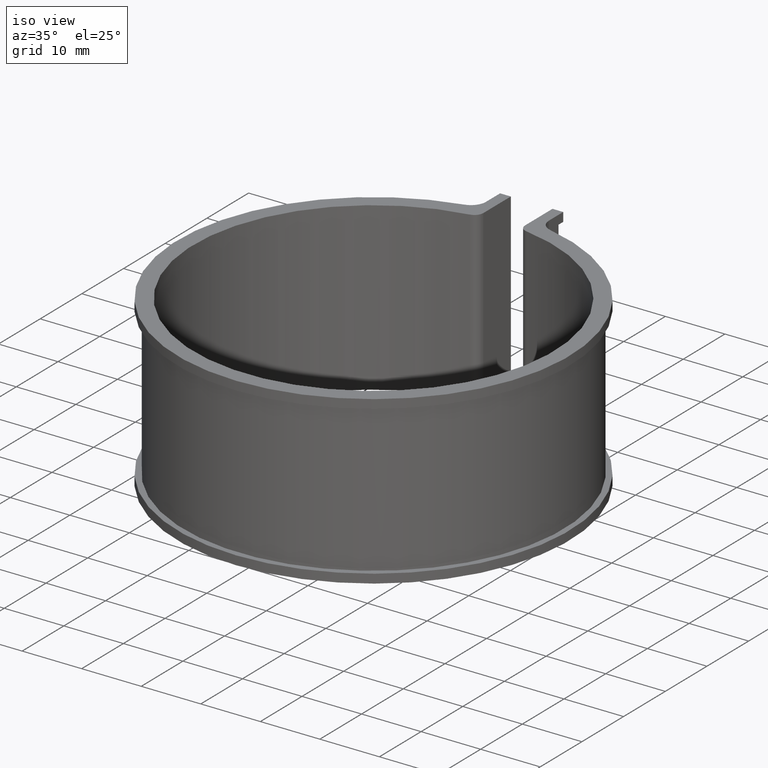
[diagram: clean part render]
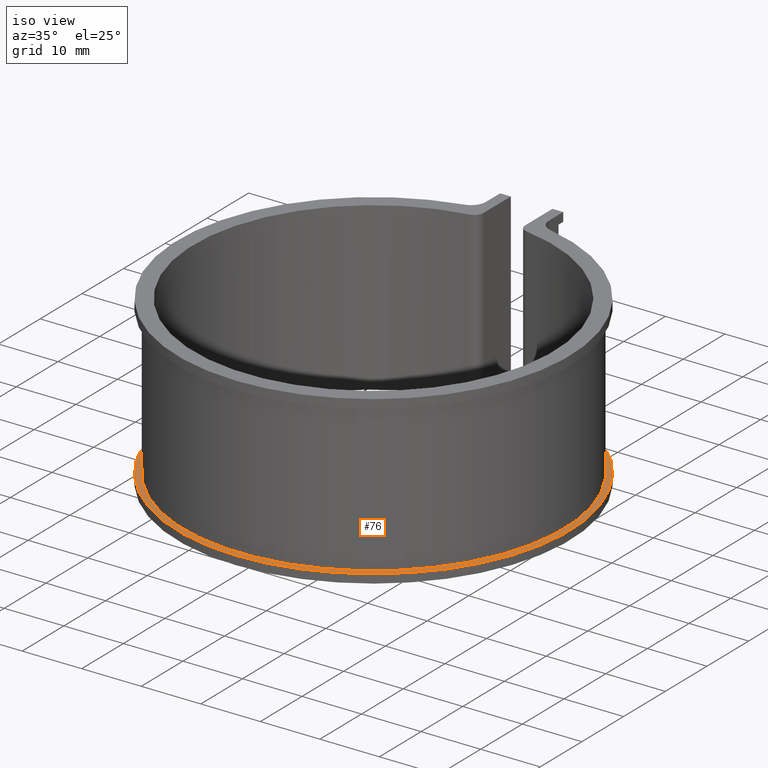
[diagram: same view with one face highlighted and labeled with its STEP entity id]
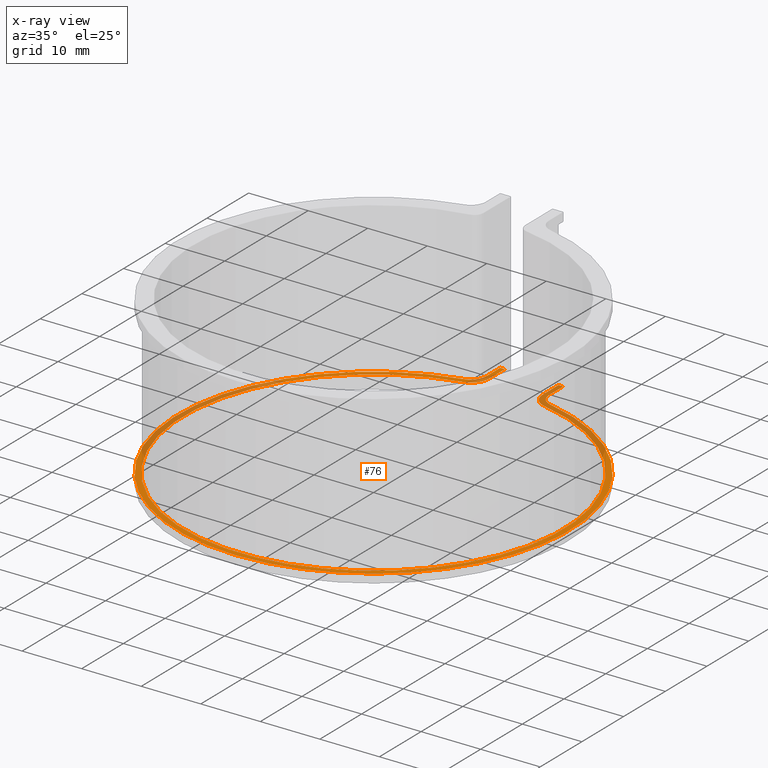
[diagram: x-ray of the same camera — body ghosted, the highlighted face saturated]
A machine part, iso view. The second image highlights one B-rep face of the part: STEP entity #76.
The next image is the same camera in x-ray: the body ghosted, the highlighted face saturated — about 29% of this face is hidden behind the body in this view.
In plain terms, the highlighted planar face has unit normal (0, 0, 1).
Its self-contained STEP definition (entity closure, byte-faithful):
#76 = ADVANCED_FACE( '', ( #104 ), #105, .T. );
#104 = FACE_OUTER_BOUND( '', #156, .T. );
#105 = PLANE( '', #157 );
#156 = EDGE_LOOP( '', ( #213, #214, #215, #216, #217, #218, #219, #220, #221, #222, #223, #224 ) );
#157 = AXIS2_PLACEMENT_3D( '', #225, #226, #227 );
#213 = ORIENTED_EDGE( '', *, *, #432, .F. );
#214 = ORIENTED_EDGE( '', *, *, #433, .T. );
#215 = ORIENTED_EDGE( '', *, *, #434, .F. );
#216 = ORIENTED_EDGE( '', *, *, #435, .T. );
#217 = ORIENTED_EDGE( '', *, *, #436, .F. );
#218 = ORIENTED_EDGE( '', *, *, #437, .T. );
#219 = ORIENTED_EDGE( '', *, *, #438, .T. );
#220 = ORIENTED_EDGE( '', *, *, #439, .T. );
#221 = ORIENTED_EDGE( '', *, *, #440, .T. );
#222 = ORIENTED_EDGE( '', *, *, #441, .T. );
#223 = ORIENTED_EDGE( '', *, *, #442, .T. );
#224 = ORIENTED_EDGE( '', *, *, #443, .T. );
#225 = CARTESIAN_POINT( '', ( 0.000000000000000, 0.000000000000000, -25.0000000000000 ) );
#226 = DIRECTION( '', ( 0.000000000000000, 0.000000000000000, 1.00000000000000 ) );
#227 = DIRECTION( '', ( 0.000000000000000, 1.00000000000000, 0.000000000000000 ) );
#432 = EDGE_CURVE( '', #508, #509, #510, .T. );
#433 = EDGE_CURVE( '', #508, #511, #512, .T. );
#434 = EDGE_CURVE( '', #513, #511, #514, .T. );
#435 = EDGE_CURVE( '', #513, #515, #516, .T. );
#436 = EDGE_CURVE( '', #517, #515, #518, .T. );
#437 = EDGE_CURVE( '', #517, #519, #520, .T. );
#438 = EDGE_CURVE( '', #519, #521, #522, .T. );
#439 = EDGE_CURVE( '', #521, #523, #524, .F. );
#440 = EDGE_CURVE( '', #523, #525, #526, .T. );
#441 = EDGE_CURVE( '', #525, #527, #528, .F. );
#442 = EDGE_CURVE( '', #527, #529, #530, .T. );
#443 = EDGE_CURVE( '', #529, #509, #531, .T. );
#508 = VERTEX_POINT( '', #632 );
#509 = VERTEX_POINT( '', #633 );
#510 = LINE( '', #634, #635 );
#511 = VERTEX_POINT( '', #636 );
#512 = CIRCLE( '', #637, 3.00000000000000 );
#513 = VERTEX_POINT( '', #638 );
#514 = CIRCLE( '', #639, 31.9500000000000 );
#515 = VERTEX_POINT( '', #640 );
#516 = CIRCLE( '', #641, 3.00000000000000 );
#517 = VERTEX_POINT( '', #642 );
#518 = LINE( '', #643, #644 );
#519 = VERTEX_POINT( '', #645 );
#520 = LINE( '', #646, #647 );
#521 = VERTEX_POINT( '', #648 );
#522 = LINE( '', #649, #650 );
#523 = VERTEX_POINT( '', #651 );
#524 = CIRCLE( '', #652, 2.50000000000000 );
#525 = VERTEX_POINT( '', #653 );
#526 = CIRCLE( '', #654, 32.9000000000000 );
#527 = VERTEX_POINT( '', #655 );
#528 = CIRCLE( '', #656, 2.50000000000000 );
#529 = VERTEX_POINT( '', #657 );
#530 = LINE( '', #658, #659 );
#531 = LINE( '', #660, #661 );
#632 = CARTESIAN_POINT( '', ( 4.50000000000000, 34.1357949958691, -25.0000000000000 ) );
#633 = CARTESIAN_POINT( '', ( 4.49999999999998, 37.9315111874219, -25.0000000000000 ) );
#634 = CARTESIAN_POINT( '', ( 4.50000000000000, 31.6315111874220, -25.0000000000000 ) );
#635 = VECTOR( '', #792, 1000.00000000000 );
#636 = CARTESIAN_POINT( '', ( 6.85622317596567, 31.2056838374254, -25.0000000000000 ) );
#637 = AXIS2_PLACEMENT_3D( '', #793, #794, #795 );
#638 = CARTESIAN_POINT( '', ( -6.85622317596566, 31.2056838374254, -25.0000000000000 ) );
#639 = AXIS2_PLACEMENT_3D( '', #796, #797, #798 );
#640 = CARTESIAN_POINT( '', ( -4.50000000000000, 34.1357949958691, -25.0000000000000 ) );
#641 = AXIS2_PLACEMENT_3D( '', #799, #800, #801 );
#642 = CARTESIAN_POINT( '', ( -4.49999999999999, 37.9315111874219, -25.0000000000000 ) );
#643 = CARTESIAN_POINT( '', ( -4.50000000000000, 37.9315111874219, -25.0000000000000 ) );
#644 = VECTOR( '', #802, 1000.00000000000 );
#645 = CARTESIAN_POINT( '', ( -5.29999999999999, 37.9315111874219, -25.0000000000000 ) );
#646 = CARTESIAN_POINT( '', ( -3.50000000000000, 37.9315111874219, -25.0000000000000 ) );
#647 = VECTOR( '', #803, 1000.00000000000 );
#648 = CARTESIAN_POINT( '', ( -5.30000000000000, 34.5299869678516, -25.0000000000000 ) );
#649 = CARTESIAN_POINT( '', ( -5.30000000000000, 37.9315111874219, -25.0000000000000 ) );
#650 = VECTOR( '', #804, 1000.00000000000 );
#651 = CARTESIAN_POINT( '', ( -7.24915254237288, 32.0914285661671, -25.0000000000000 ) );
#652 = AXIS2_PLACEMENT_3D( '', #805, #806, #807 );
#653 = CARTESIAN_POINT( '', ( 7.24915254237288, 32.0914285661671, -25.0000000000000 ) );
#654 = AXIS2_PLACEMENT_3D( '', #808, #809, #810 );
#655 = CARTESIAN_POINT( '', ( 5.30000000000000, 34.5299869678516, -25.0000000000000 ) );
#656 = AXIS2_PLACEMENT_3D( '', #811, #812, #813 );
#657 = CARTESIAN_POINT( '', ( 5.30000000000000, 37.9315111874219, -25.0000000000000 ) );
#658 = CARTESIAN_POINT( '', ( 5.30000000000000, 32.4702941163150, -25.0000000000000 ) );
#659 = VECTOR( '', #814, 1000.00000000000 );
#660 = CARTESIAN_POINT( '', ( 5.30000000000000, 37.9315111874219, -25.0000000000000 ) );
#661 = VECTOR( '', #815, 1000.00000000000 );
#792 = DIRECTION( '', ( 6.93889390390723E-017, 1.00000000000000, 0.000000000000000 ) );
#793 = CARTESIAN_POINT( '', ( 7.50000000000000, 34.1357949958691, -25.0000000000000 ) );
#794 = DIRECTION( '', ( 0.000000000000000, 0.000000000000000, 1.00000000000000 ) );
#795 = DIRECTION( '', ( 1.00000000000000, 0.000000000000000, 0.000000000000000 ) );
#796 = CARTESIAN_POINT( '', ( 4.33680868994202E-016, 3.46944695195361E-015, -25.0000000000000 ) );
#797 = DIRECTION( '', ( 0.000000000000000, 0.000000000000000, 1.00000000000000 ) );
#798 = DIRECTION( '', ( 1.00000000000000, 2.77555756156289E-017, 0.000000000000000 ) );
#799 = CARTESIAN_POINT( '', ( -7.50000000000000, 34.1357949958691, -25.0000000000000 ) );
#800 = DIRECTION( '', ( 0.000000000000000, 0.000000000000000, 1.00000000000000 ) );
#801 = DIRECTION( '', ( 1.00000000000000, 0.000000000000000, 0.000000000000000 ) );
#802 = DIRECTION( '', ( -6.93889390390723E-017, -1.00000000000000, 0.000000000000000 ) );
#803 = DIRECTION( '', ( -1.00000000000000, 0.000000000000000, 0.000000000000000 ) );
#804 = DIRECTION( '', ( -6.12303176911189E-017, -1.00000000000000, 0.000000000000000 ) );
#805 = CARTESIAN_POINT( '', ( -7.80000000000000, 34.5299869678516, -25.0000000000000 ) );
#806 = DIRECTION( '', ( 0.000000000000000, 0.000000000000000, 1.00000000000000 ) );
#807 = DIRECTION( '', ( 1.00000000000000, 0.000000000000000, 0.000000000000000 ) );
#808 = CARTESIAN_POINT( '', ( 0.000000000000000, 0.000000000000000, -25.0000000000000 ) );
#809 = DIRECTION( '', ( 0.000000000000000, 0.000000000000000, 1.00000000000000 ) );
#810 = DIRECTION( '', ( 1.00000000000000, 0.000000000000000, 0.000000000000000 ) );
#811 = CARTESIAN_POINT( '', ( 7.80000000000000, 34.5299869678516, -25.0000000000000 ) );
#812 = DIRECTION( '', ( 0.000000000000000, 0.000000000000000, 1.00000000000000 ) );
#813 = DIRECTION( '', ( 1.00000000000000, 0.000000000000000, 0.000000000000000 ) );
#814 = DIRECTION( '', ( 6.12303176911189E-017, 1.00000000000000, 0.000000000000000 ) );
#815 = DIRECTION( '', ( -1.00000000000000, 0.000000000000000, 0.000000000000000 ) );